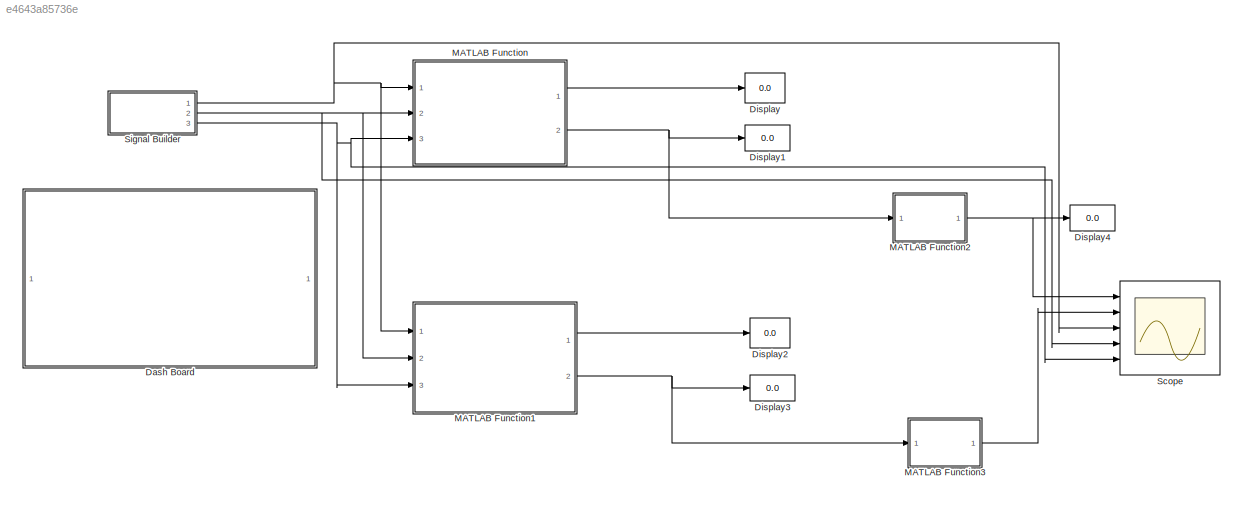
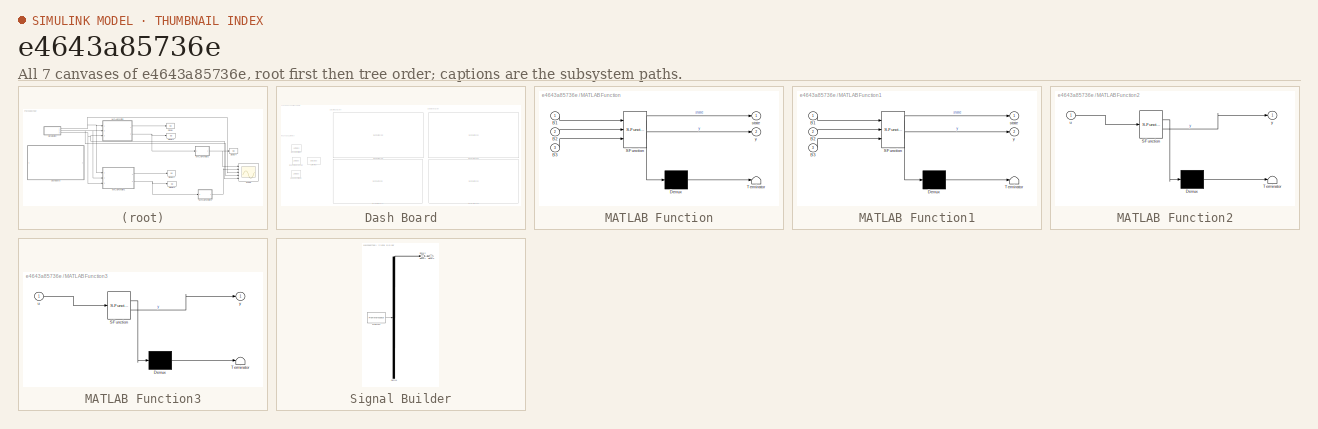
[diagram: thumbnail index - all 7 canvases of the model, root first then tree order]
MODEL slx_e4643a85736e
KIND model
CONFIG AbsTol = auto
CONFIG EnableMultiTasking = off
CONFIG FixedStep = 1
CONFIG MaxStep = auto
CONFIG MinStep = auto
CONFIG RelTol = 1e-3
CONFIG SampleTimeConstraint = Unconstrained
CONFIG Solver = VariableStepAuto
CONFIG SolverName = VariableStepAuto
CONFIG StartTime = 0.0
CONFIG StopTime = inf
BLOCK [SubSystem] Dash Board
  Ports = []
  RequestExecContextInheritance = off
BLOCK [DisplayBlock] Dash Board/Current Floor
  Format = short
  LabelPosition = Hide
  Transparency = 1
BLOCK [DashboardScope] Dash Board/Dashboard Scope
  ScaleAtStop = off
  TimeSpan = 20
  Ymax = 2.5
  Ymin = -2.5
BLOCK [DashboardScope] Dash Board/Dashboard Scope1
  ScaleAtStop = off
  TimeSpan = 20
  Ymax = 1.5
  Ymin = -0.5
BLOCK [DashboardScope] Dash Board/Dashboard Scope2
  ScaleAtStop = off
  TimeSpan = 20
  Ymax = 2.5
  Ymin = -2.5
BLOCK [DashboardScope] Dash Board/Dashboard Scope3
  ScaleAtStop = off
  TimeSpan = 20
  Ymax = 1.5
  Ymin = -0.5
BLOCK [LampBlock] Dash Board/Requested First Floor
BLOCK [LampBlock] Dash Board/Requested Second Floor
BLOCK [LampBlock] Dash Board/Requested Third Floor
BLOCK [Display] Display
  Decimation = 1
  Ports = [1]
BLOCK [Display] Display1
  Decimation = 1
  Ports = [1]
BLOCK [Display] Display2
  Decimation = 1
  Ports = [1]
BLOCK [Display] Display3
  Decimation = 1
  Ports = [1]
BLOCK [Display] Display4
  Decimation = 1
  Ports = [1]
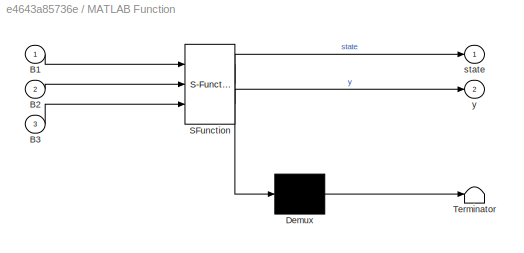
BLOCK [SubSystem] MATLAB Function
  ErrorFcn = Stateflow.Translate.translate
  PermitHierarchicalResolution = ExplicitOnly
  Ports = [3, 2]
  RequestExecContextInheritance = off
  SFBlockType = MATLAB Function
  TreatAsAtomicUnit = on
BLOCK [Demux] MATLAB Function/ Demux 
  DisplayOption = bar
  Outputs = 1
  Ports = [1, 1]
BLOCK [S-Function] MATLAB Function/ SFunction 
  EnableBusSupport = on
  FunctionName = sf_sfun
  PortCounts = [3 3]
  Ports = [3, 3]
  SFcnIsStateOwnerBlock = off
  SFunctionDeploymentMode = off
  Tag = Stateflow S-Function 2
BLOCK [Terminator] MATLAB Function/ Terminator 
BLOCK [Inport] MATLAB Function/B1
  IconDisplay = Port number
BLOCK [Inport] MATLAB Function/B2
  IconDisplay = Port number
  Port = 2
BLOCK [Inport] MATLAB Function/B3
  IconDisplay = Port number
  Port = 3
BLOCK [Outport] MATLAB Function/state
  IconDisplay = Port number
BLOCK [Outport] MATLAB Function/y
  IconDisplay = Port number
  Port = 2
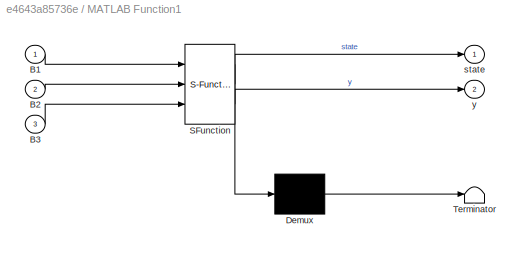
BLOCK [SubSystem] MATLAB Function1
  ErrorFcn = Stateflow.Translate.translate
  PermitHierarchicalResolution = ExplicitOnly
  Ports = [3, 2]
  RequestExecContextInheritance = off
  SFBlockType = MATLAB Function
  TreatAsAtomicUnit = on
BLOCK [Demux] MATLAB Function1/ Demux 
  DisplayOption = bar
  Outputs = 1
  Ports = [1, 1]
BLOCK [S-Function] MATLAB Function1/ SFunction 
  EnableBusSupport = on
  FunctionName = sf_sfun
  PortCounts = [3 3]
  Ports = [3, 3]
  SFcnIsStateOwnerBlock = off
  SFunctionDeploymentMode = off
  Tag = Stateflow S-Function 1
BLOCK [Terminator] MATLAB Function1/ Terminator 
BLOCK [Inport] MATLAB Function1/B1
  IconDisplay = Port number
BLOCK [Inport] MATLAB Function1/B2
  IconDisplay = Port number
  Port = 2
BLOCK [Inport] MATLAB Function1/B3
  IconDisplay = Port number
  Port = 3
BLOCK [Outport] MATLAB Function1/state
  IconDisplay = Port number
BLOCK [Outport] MATLAB Function1/y
  IconDisplay = Port number
  Port = 2
BLOCK [SubSystem] MATLAB Function2
  ErrorFcn = Stateflow.Translate.translate
  PermitHierarchicalResolution = ExplicitOnly
  Ports = [1, 1]
  RequestExecContextInheritance = off
  SFBlockType = MATLAB Function
  TreatAsAtomicUnit = on
BLOCK [Demux] MATLAB Function2/ Demux 
  DisplayOption = bar
  Outputs = 1
  Ports = [1, 1]
BLOCK [S-Function] MATLAB Function2/ SFunction 
  EnableBusSupport = on
  FunctionName = sf_sfun
  PortCounts = [1 2]
  Ports = [1, 2]
  SFcnIsStateOwnerBlock = off
  SFunctionDeploymentMode = off
  Tag = Stateflow S-Function 3
BLOCK [Terminator] MATLAB Function2/ Terminator 
BLOCK [Inport] MATLAB Function2/u
  IconDisplay = Port number
BLOCK [Outport] MATLAB Function2/y
  IconDisplay = Port number
BLOCK [SubSystem] MATLAB Function3
  ErrorFcn = Stateflow.Translate.translate
  PermitHierarchicalResolution = ExplicitOnly
  Ports = [1, 1]
  RequestExecContextInheritance = off
  SFBlockType = MATLAB Function
  TreatAsAtomicUnit = on
BLOCK [Demux] MATLAB Function3/ Demux 
  DisplayOption = bar
  Outputs = 1
  Ports = [1, 1]
BLOCK [S-Function] MATLAB Function3/ SFunction 
  EnableBusSupport = on
  FunctionName = sf_sfun
  PortCounts = [1 2]
  Ports = [1, 2]
  SFcnIsStateOwnerBlock = off
  SFunctionDeploymentMode = off
  Tag = Stateflow S-Function 4
BLOCK [Terminator] MATLAB Function3/ Terminator 
BLOCK [Inport] MATLAB Function3/u
  IconDisplay = Port number
BLOCK [Outport] MATLAB Function3/y
  IconDisplay = Port number
BLOCK [Scope] Scope
  Floating = off
  NumInputPorts = 5
  Ports = [5]
  ScopeSpecificationString = Simulink.scopes.TimeScopeBlockCfg('CurrentConfiguration', extmgr.ConfigurationSet(extmgr.Configuration('Core','General UI',true),extmgr.Configuration('Core','Source UI',true),extmgr.Configuration('Sources','WiredSimulink',true),extmgr.Configuration('Visuals','Time Domain',true,'SerializedDisplays',{struct('MinYLimReal','-2.5','MaxYLimReal','2.5','YLabelReal','','MinYLimMag','0.00000','MaxYLimMag',...<+2953ch>
BLOCK [SubSystem] Signal Builder
  ClipboardFcn = sigbuilder_block('clipboard');
  CloseFcn = sigbuilder_block('close');
  ContinueFcn = sigbuilder_block('continue');
  CopyFcn = sigbuilder_block('copy');
  DeleteFcn = sigbuilder_block('delete');
  LoadFcn = sigbuilder_block('load');
  MaskHideContents = on
  ModelCloseFcn = sigbuilder_block('modelClose');
  NameChangeFcn = sigbuilder_block('namechange');
  OpenFcn = sigbuilder_block('open',[5.4 36 1141.2 516.6 ]);
  PauseFcn = sigbuilder_block('pause');
  Ports = [0, 3]
  PreSaveFcn = sigbuilder_block('preSave');
  RequestExecContextInheritance = off
  StartFcn = sigbuilder_block('start');
  StopFcn = sigbuilder_block('stop');
  Tag = STV Subsys
BLOCK [Demux] Signal Builder/Demux
  Outputs = 3
  Ports = [1, 3]
  Tag = STV Demux
BLOCK [FromWorkspace] Signal Builder/FromWs
  OutputAfterFinalValue = Setting to zero
  SampleTime = 0.1
  Tag = STV FromWs
  VariableName = tuvar
  ZeroCross = on
BLOCK [Outport] Signal Builder/Signal 1
  IconDisplay = Port number
  Tag = STV Outport
BLOCK [Outport] Signal Builder/Signal 2
  IconDisplay = Port number
  Port = 2
  Tag = STV Outport
BLOCK [Outport] Signal Builder/Signal 3
  IconDisplay = Port number
  Port = 3
  Tag = STV Outport
ANNOTATION Dash Board: Output of Mealy Machine
ANNOTATION Dash Board: Output of Moore Machine
ANNOTATION Dash Board: Requests and Current Floor
LINE MATLAB Function1:1 -> Display2:1
NET MATLAB Function1:2 -> Display3:1, MATLAB Function3:1
NET MATLAB Function2:1 -> Display4:1, Scope:1
LINE MATLAB Function3:1 -> Scope:2
LINE MATLAB Function:1 -> Display:1
NET MATLAB Function:2 -> Display1:1, MATLAB Function2:1
NET Signal Builder:1 -> MATLAB Function1:1, MATLAB Function:1, Scope:3
NET Signal Builder:2 -> MATLAB Function1:2, MATLAB Function:2, Scope:4
NET Signal Builder:3 -> MATLAB Function1:3, MATLAB Function:3, Scope:5
note: NET lines group one-source signal fan-out (src -> all destinations, sorted); 1:1 wires keep LINE
CHART MATLAB Function1 states=1 transitions=1
  STATE_LABEL 'eML_blk_kernel()'
  STATE_LABEL 'SCRIPT:\nfunction [state ,y] = fcn(B1,B2,B3)\npersistent current_state\nif(isempty(current_state))\n    current_state = 1;\nend\nswitch current_state\n    case 1\n        if(B1)\n            current_state = 1;\n        elseif(B2)\n            current_state = 4;\n        elseif(B3)\n            current_state = 6;\n        end\n    case 2\n        if(B1)\n            current_state = 5;\n        elseif(B2)\n           ...<+990ch>'
CHART MATLAB Function states=1 transitions=1
  STATE_LABEL 'eML_blk_kernel()'
  STATE_LABEL 'SCRIPT:\nfunction [state,y] = fcn(B1,B2,B3)\npersistent current_state\nif(isempty(current_state))\n    current_state = 1;\nend\nswitch current_state\n    case 1\n        if(B2)\n            current_state = 2;\n            y = "u1";\n        elseif(B3)\n            current_state = 3;\n            y = "u2";\n        else\n            current_state = 1;\n            y = "s";\n        end\n    case 2\n        if(B1)\n   ...<+461ch>'
CHART MATLAB Function2 states=1 transitions=1
  STATE_LABEL 'eML_blk_kernel()'
  STATE_LABEL 'SCRIPT:\nfunction y = fcn(u)\nif u == "s"\n    y = 0;\nelseif u == "u1"\n    y = 1;\nelseif u == "u2"\n    y = 2;\nelseif u == "d1"\n    y = -1;\nelse\n    y = -2;\nend\n'
CHART MATLAB Function3 states=1 transitions=1
  STATE_LABEL 'eML_blk_kernel()'
  STATE_LABEL 'SCRIPT:\nfunction y = fcn(u)\nif u == "s"\n    y = 0;\nelseif u == "u1"\n    y = 1;\nelseif u == "u2"\n    y = 2;\nelseif u == "d1"\n    y = -1;\nelse\n    y = -2;\nend\n'
